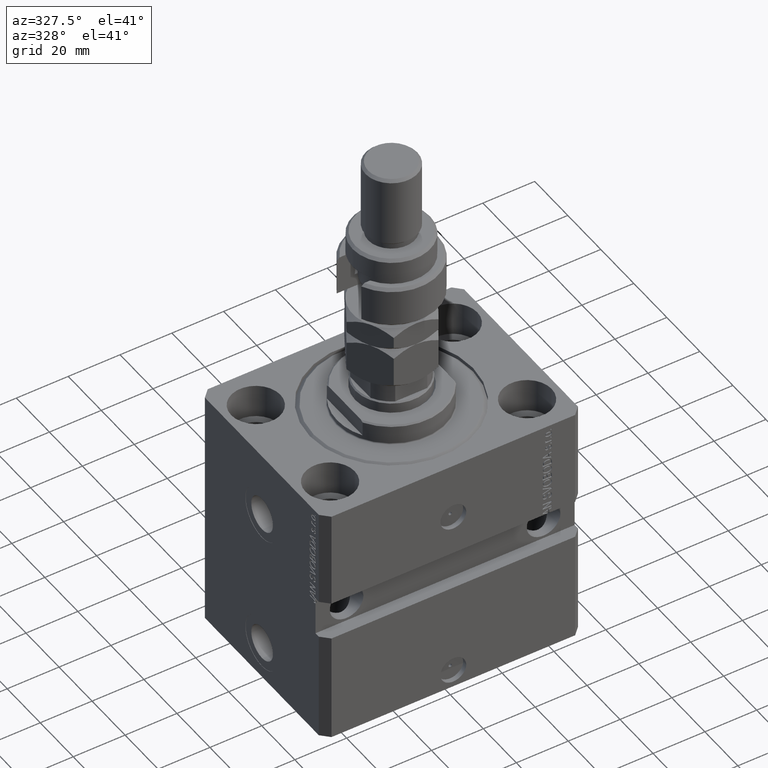
[diagram: clean part render]
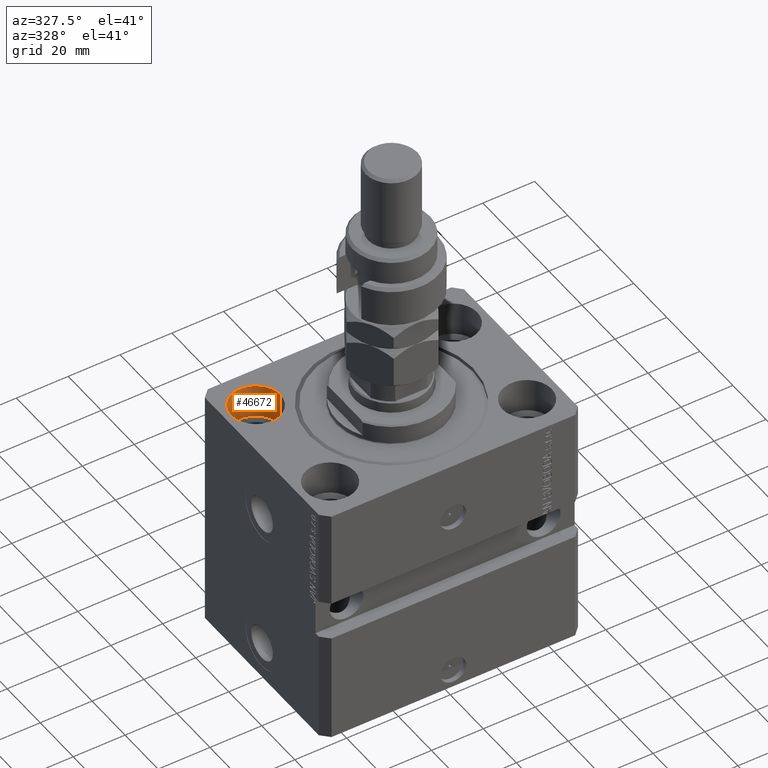
[diagram: same view with one face highlighted and labeled with its STEP entity id]
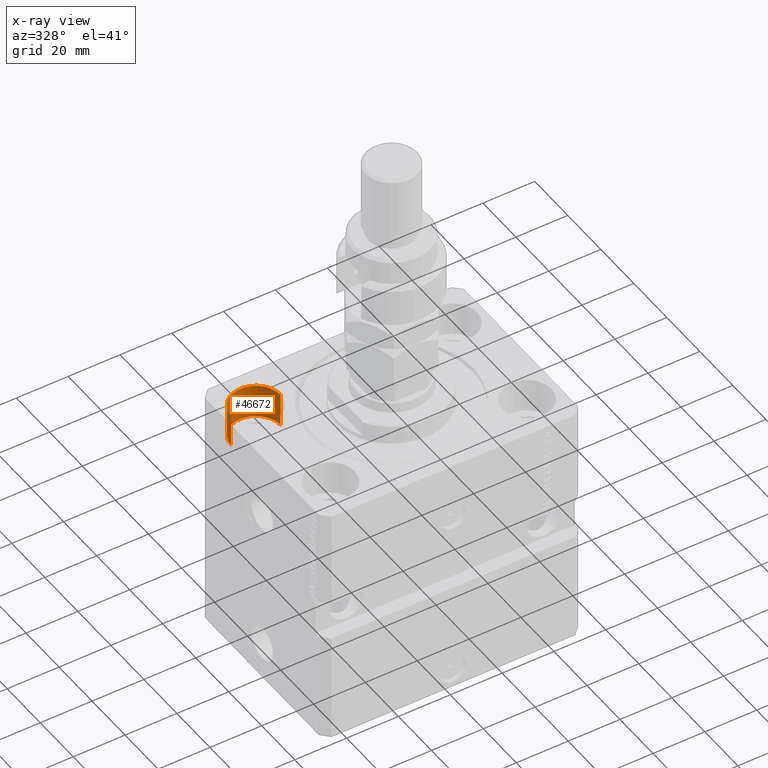
[diagram: x-ray of the same camera — body ghosted, the highlighted face saturated]
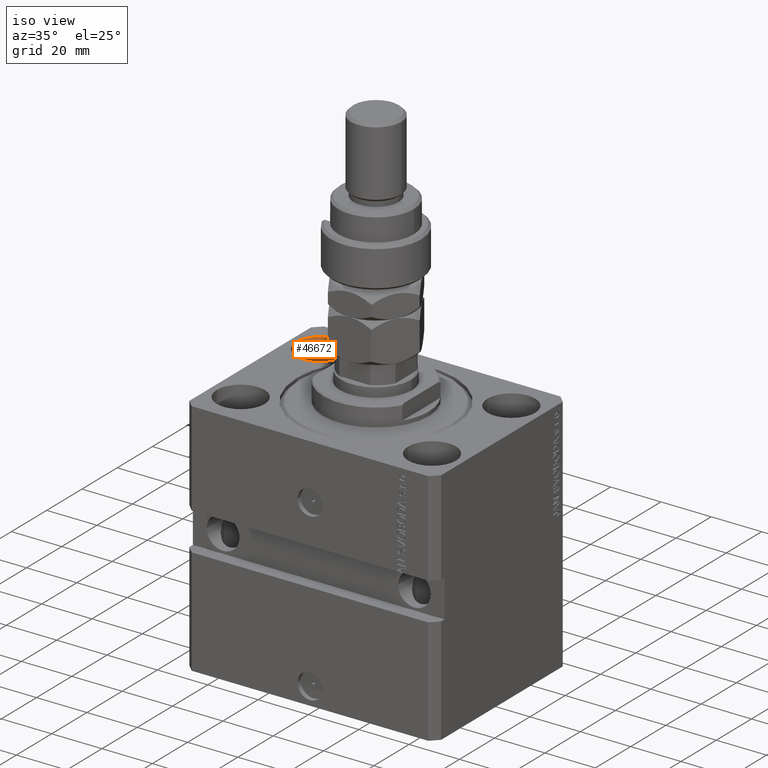
[diagram: same view with one face highlighted and labeled with its STEP entity id]
A machine part, auxiliary view. The second image highlights one B-rep face of the part: STEP entity #46672.
The next image is the same camera in x-ray: the body ghosted, the highlighted face saturated — about 0% of this face is hidden behind the body in this view.
A second angle (iso view) of the same face is appended — the face is thin or edge-on in the first view.
In plain terms, the highlighted cylindrical surface (edge-blend (fillet) strip) has radius 9.5 mm, axis along (0, 0, 1).
Its self-contained STEP definition (entity closure, byte-faithful):
#340 = DIRECTION ( 'NONE',  ( 0.000000000000000000, 0.000000000000000000, 1.000000000000000000 ) ) ;
#799 = CARTESIAN_POINT ( 'NONE',  ( -47.50000000000000711, 22.50000000000000000, -13.00000000000000000 ) ) ;
#879 = DIRECTION ( 'NONE',  ( -0.000000000000000000, -0.000000000000000000, 1.000000000000000000 ) ) ;
#1405 = EDGE_CURVE ( 'NONE', #27639, #15331, #39699, .T. ) ;
#3006 = ORIENTED_EDGE ( 'NONE', *, *, #8039, .F. ) ;
#6475 = DIRECTION ( 'NONE',  ( 1.000000000000000000, 0.000000000000000000, 0.000000000000000000 ) ) ;
#8039 = EDGE_CURVE ( 'NONE', #27639, #30642, #18202, .T. ) ;
#8330 = EDGE_CURVE ( 'NONE', #30642, #21888, #19629, .T. ) ;
#8795 = ORIENTED_EDGE ( 'NONE', *, *, #1405, .T. ) ;
#9050 = CARTESIAN_POINT ( 'NONE',  ( -28.50000000000000355, 22.50000000000000000, -13.00000000000000000 ) ) ;
#9709 = DIRECTION ( 'NONE',  ( 1.000000000000000000, 0.000000000000000000, 0.000000000000000000 ) ) ;
#13500 = CIRCLE ( 'NONE', #26564, 9.500000000000001776 ) ;
#13535 = CYLINDRICAL_SURFACE ( 'NONE', #40365, 9.500000000000001776 ) ;
#14635 = CARTESIAN_POINT ( 'NONE',  ( -38.00000000000000711, 22.50000000000000000, -13.00000000000000000 ) ) ;
#15331 = VERTEX_POINT ( 'NONE', #32889 ) ;
#17703 = EDGE_LOOP ( 'NONE', ( #22035, #3006, #8795, #38815 ) ) ;
#18202 = CIRCLE ( 'NONE', #20646, 9.500000000000001776 ) ;
#18894 = EDGE_CURVE ( 'NONE', #15331, #21888, #13500, .T. ) ;
#18987 = DIRECTION ( 'NONE',  ( 1.000000000000000000, 0.000000000000000000, 0.000000000000000000 ) ) ;
#19629 = LINE ( 'NONE', #27541, #24745 ) ;
#20120 = DIRECTION ( 'NONE',  ( -0.000000000000000000, -0.000000000000000000, 1.000000000000000000 ) ) ;
#20646 = AXIS2_PLACEMENT_3D ( 'NONE', #14635, #29970, #6475 ) ;
#21888 = VERTEX_POINT ( 'NONE', #37995 ) ;
#22035 = ORIENTED_EDGE ( 'NONE', *, *, #8330, .F. ) ;
#24745 = VECTOR ( 'NONE', #20120, 1000.000000000000000 ) ;
#26564 = AXIS2_PLACEMENT_3D ( 'NONE', #35318, #340, #18987 ) ;
#27541 = CARTESIAN_POINT ( 'NONE',  ( -47.50000000000000711, 22.50000000000000000, -13.00000000000000000 ) ) ;
#27639 = VERTEX_POINT ( 'NONE', #38953 ) ;
#29115 = CARTESIAN_POINT ( 'NONE',  ( -38.00000000000000711, 22.50000000000000000, -13.00000000000000000 ) ) ;
#29970 = DIRECTION ( 'NONE',  ( 0.000000000000000000, 0.000000000000000000, 1.000000000000000000 ) ) ;
#30642 = VERTEX_POINT ( 'NONE', #799 ) ;
#30894 = VECTOR ( 'NONE', #879, 1000.000000000000000 ) ;
#32889 = CARTESIAN_POINT ( 'NONE',  ( -28.50000000000000355, 22.50000000000000000, 0.000000000000000000 ) ) ;
#35318 = CARTESIAN_POINT ( 'NONE',  ( -38.00000000000000711, 22.50000000000000000, 0.000000000000000000 ) ) ;
#37995 = CARTESIAN_POINT ( 'NONE',  ( -47.50000000000000711, 22.50000000000000000, 0.000000000000000000 ) ) ;
#38815 = ORIENTED_EDGE ( 'NONE', *, *, #18894, .T. ) ;
#38953 = CARTESIAN_POINT ( 'NONE',  ( -28.50000000000000355, 22.50000000000000000, -13.00000000000000000 ) ) ;
#39699 = LINE ( 'NONE', #9050, #30894 ) ;
#40365 = AXIS2_PLACEMENT_3D ( 'NONE', #29115, #49529, #9709 ) ;
#46672 = ADVANCED_FACE ( 'NONE', ( #48762 ), #13535, .F. ) ;
#48762 = FACE_OUTER_BOUND ( 'NONE', #17703, .T. ) ;
#49529 = DIRECTION ( 'NONE',  ( -0.000000000000000000, -0.000000000000000000, 1.000000000000000000 ) ) ;